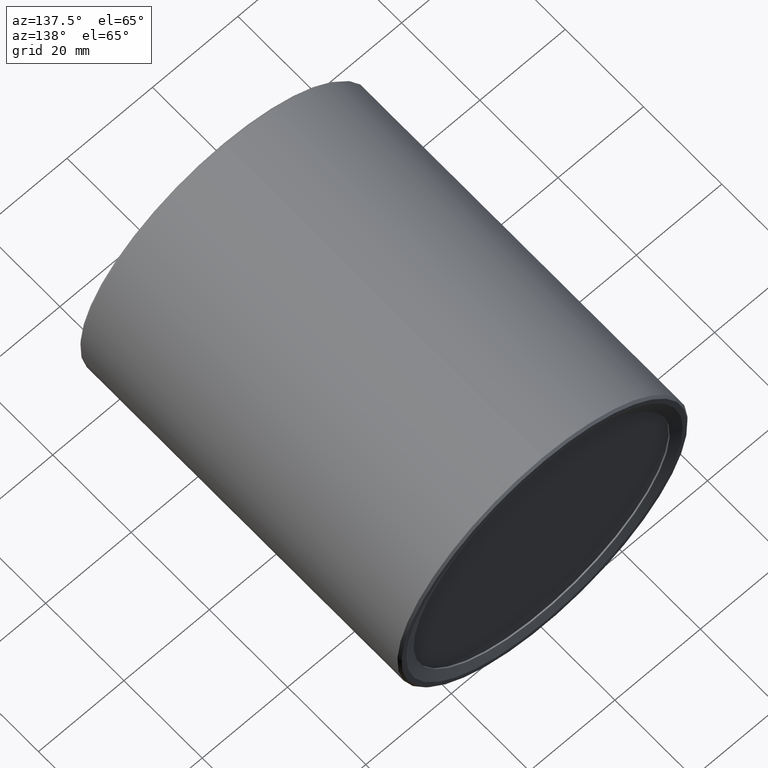
[diagram: clean part render]
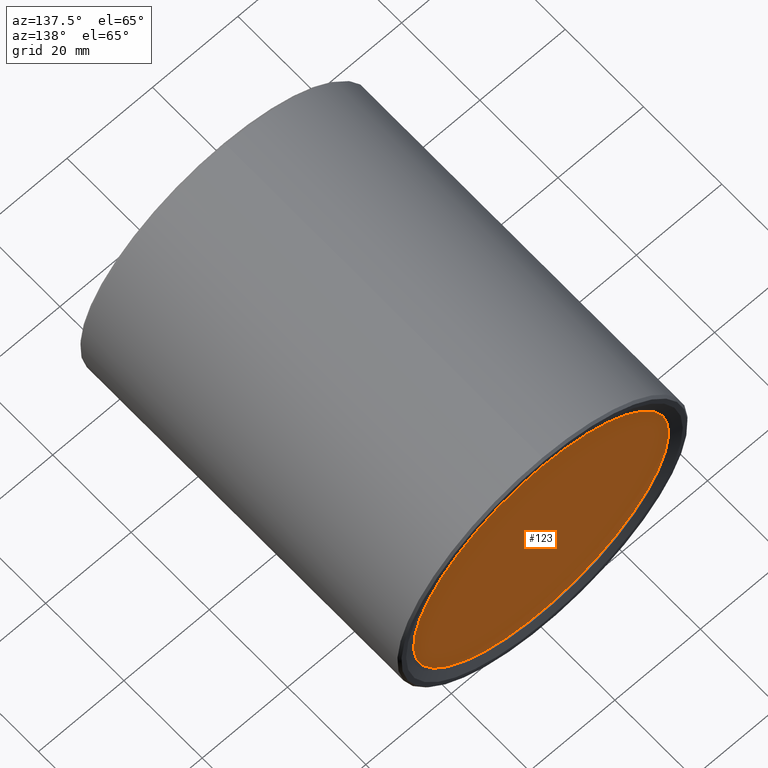
[diagram: same view with one face highlighted and labeled with its STEP entity id]
A machine part, auxiliary view. The second image highlights one B-rep face of the part: STEP entity #123.
In plain terms, the highlighted planar face has unit normal (0, 1, 0).
Its self-contained STEP definition (entity closure, byte-faithful):
#2 = AXIS2_PLACEMENT_3D ( 'NONE', #315, #267, #17 ) ;
#16 = PLANE ( 'NONE',  #198 ) ;
#17 = DIRECTION ( 'NONE',  ( 0.000000000000000000, 0.000000000000000000, 1.000000000000000000 ) ) ;
#84 = CARTESIAN_POINT ( 'NONE',  ( 0.000000000000000000, 81.00000000000000000, 30.00000000000000000 ) ) ;
#104 = VERTEX_POINT ( 'NONE', #84 ) ;
#123 = ADVANCED_FACE ( 'NONE', ( #322 ), #16, .T. ) ;
#183 = DIRECTION ( 'NONE',  ( 0.000000000000000000, -0.000000000000000000, 1.000000000000000000 ) ) ;
#184 = DIRECTION ( 'NONE',  ( 0.000000000000000000, 1.000000000000000000, 0.000000000000000000 ) ) ;
#198 = AXIS2_PLACEMENT_3D ( 'NONE', #320, #184, #183 ) ;
#221 = EDGE_CURVE ( 'NONE', #104, #104, #282, .T. ) ;
#254 = ORIENTED_EDGE ( 'NONE', *, *, #221, .F. ) ;
#267 = DIRECTION ( 'NONE',  ( -0.000000000000000000, -1.000000000000000000, -0.000000000000000000 ) ) ;
#282 = CIRCLE ( 'NONE', #2, 30.00000000000000000 ) ;
#289 = EDGE_LOOP ( 'NONE', ( #254 ) ) ;
#315 = CARTESIAN_POINT ( 'NONE',  ( 0.000000000000000000, 81.00000000000000000, 0.000000000000000000 ) ) ;
#320 = CARTESIAN_POINT ( 'NONE',  ( 0.000000000000000000, 81.00000000000000000, 0.000000000000000000 ) ) ;
#322 = FACE_OUTER_BOUND ( 'NONE', #289, .T. ) ;